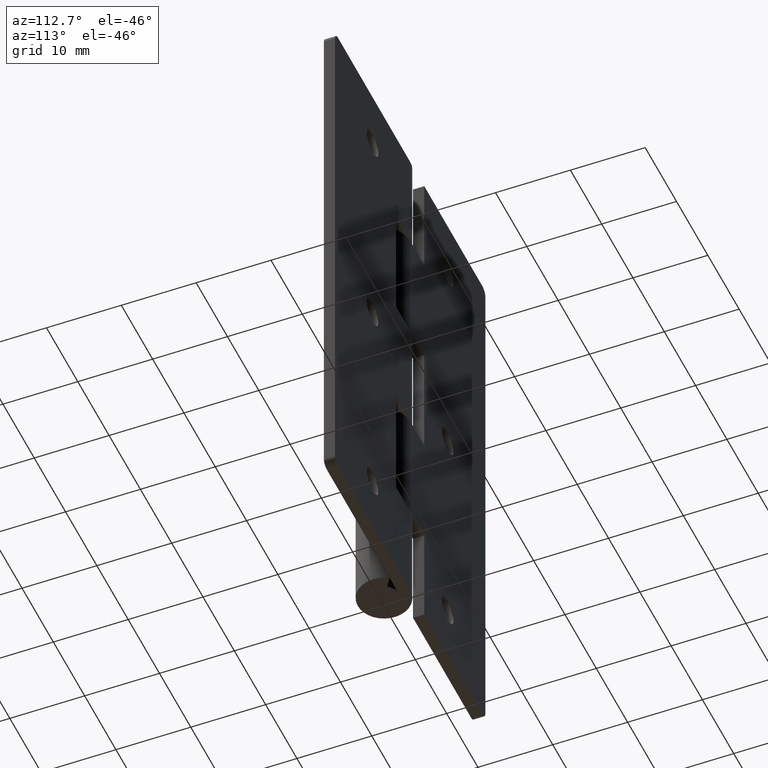
[diagram: clean part render]
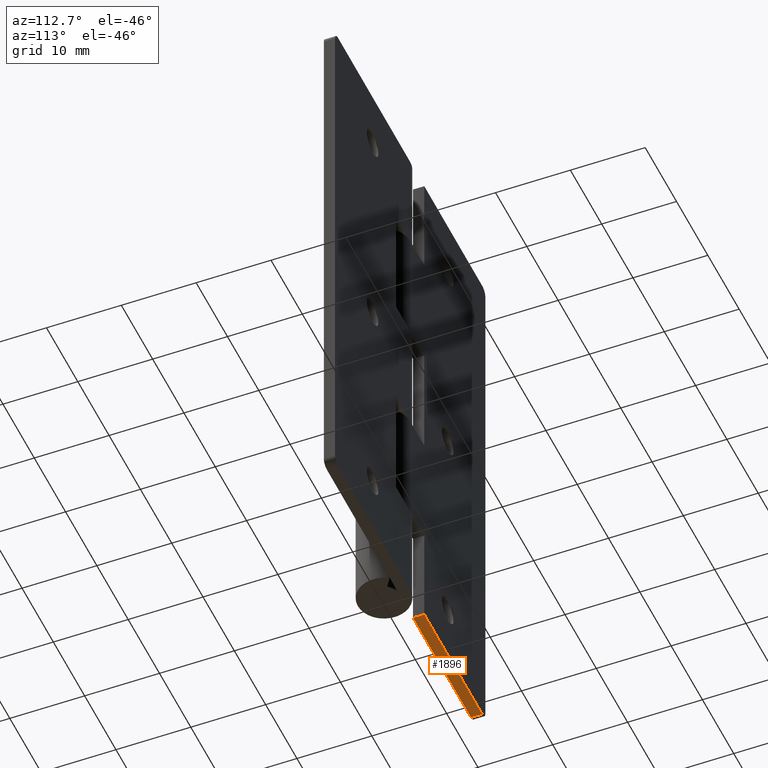
[diagram: same view with one face highlighted and labeled with its STEP entity id]
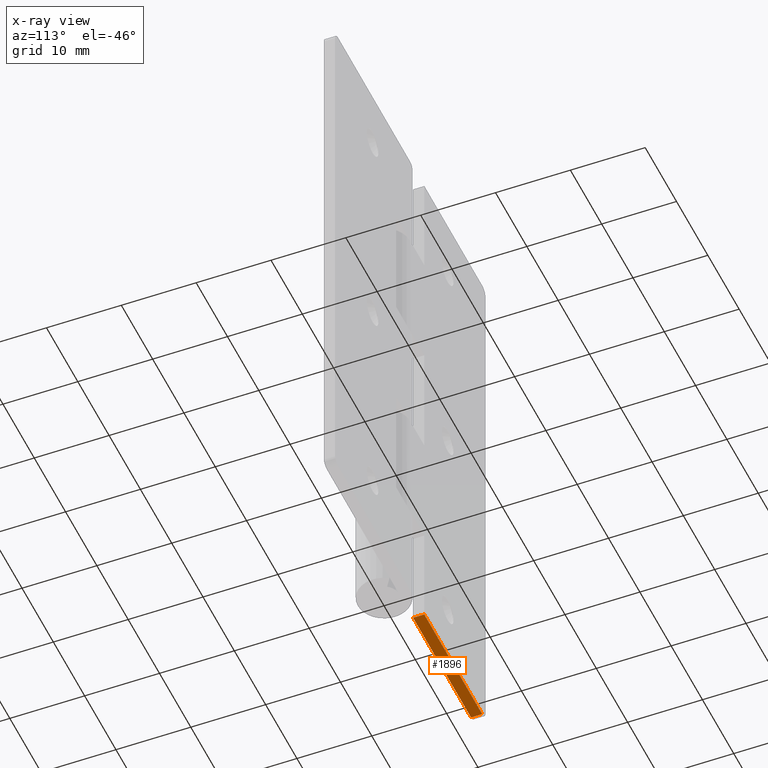
[diagram: x-ray of the same camera — body ghosted, the highlighted face saturated]
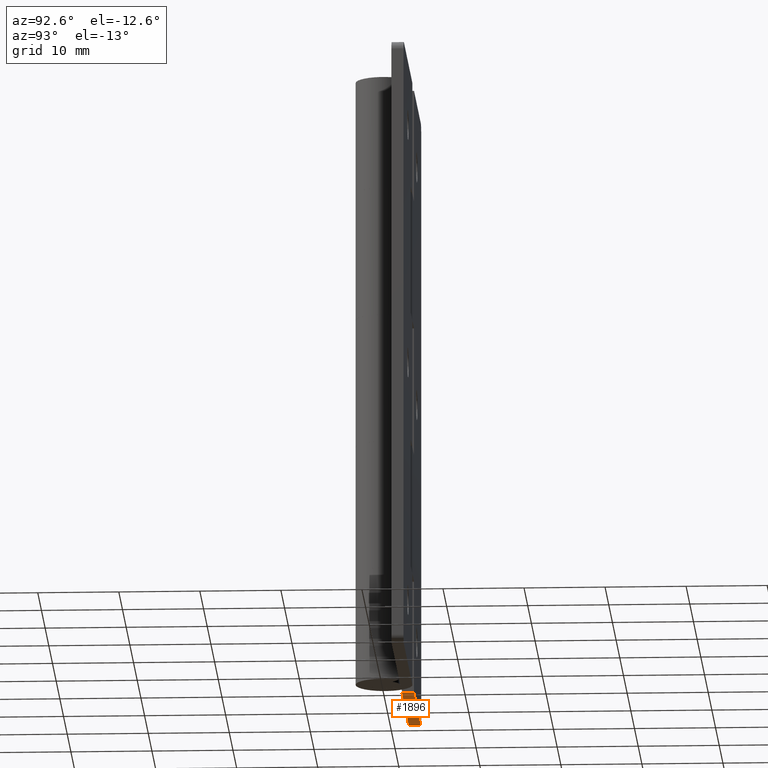
[diagram: same view with one face highlighted and labeled with its STEP entity id]
A machine part, auxiliary view. The second image highlights one B-rep face of the part: STEP entity #1896.
The next image is the same camera in x-ray: the body ghosted, the highlighted face saturated — about 0% of this face is hidden behind the body in this view.
A second angle (auxiliary view) of the same face is appended — the face is thin or edge-on in the first view.
In plain terms, the highlighted face is a freeform B-spline surface patch.
Its self-contained STEP definition (entity closure, byte-faithful):
#1692=CARTESIAN_POINT('',(-4.500000000000000,2.0,0.0));
#1693=VERTEX_POINT('',#1692);
#1699=CARTESIAN_POINT('',(-4.500000000000000,3.499999999999950,0.0));
#1700=VERTEX_POINT('',#1699);
#1701=CARTESIAN_POINT('',(-4.500000000000000,3.499999999999950,0.0));
#1702=CARTESIAN_POINT('',(-4.500000000000000,2.0,0.0));
#1703=QUASI_UNIFORM_CURVE('',1,(#1701,#1702),.UNSPECIFIED.,.F.,.U.);
#1704=EDGE_CURVE('',#1700,#1693,#1703,.T.);
#1792=CARTESIAN_POINT('',(-23.0,2.0,0.0));
#1793=VERTEX_POINT('',#1792);
#1814=CARTESIAN_POINT('',(-23.0,3.500000000000000,0.0));
#1815=VERTEX_POINT('',#1814);
#1829=CARTESIAN_POINT('',(-23.0,3.500000000000000,0.0));
#1830=CARTESIAN_POINT('',(-23.0,2.0,0.0));
#1831=QUASI_UNIFORM_CURVE('',1,(#1829,#1830),.UNSPECIFIED.,.F.,.U.);
#1832=EDGE_CURVE('',#1815,#1793,#1831,.T.);
#1877=CARTESIAN_POINT('',(-23.924074964143411,1.925075002907291,0.0));
#1878=CARTESIAN_POINT('',(-3.575924539647923,1.925075002907291,0.0));
#1879=CARTESIAN_POINT('',(-23.924074964143411,3.574925037325844,0.0));
#1880=CARTESIAN_POINT('',(-3.575924539647923,3.574925037325844,0.0));
#1881=B_SPLINE_SURFACE_WITH_KNOTS('',1,1,((#1877,#1879),(#1878,#1880)),.UNSPECIFIED.,.F.,.F.,.U.,(2,2),(2,2),(0.0,20.348150424495490),(0.041708334948495,0.958291687403247),.UNSPECIFIED.);
#1882=CARTESIAN_POINT('',(-23.0,3.500000000000000,0.0));
#1883=CARTESIAN_POINT('',(-4.500000000000000,3.499999999999950,0.0));
#1884=QUASI_UNIFORM_CURVE('',1,(#1882,#1883),.UNSPECIFIED.,.F.,.U.);
#1885=EDGE_CURVE('',#1815,#1700,#1884,.T.);
#1886=ORIENTED_EDGE('',*,*,#1885,.T.);
#1887=ORIENTED_EDGE('',*,*,#1704,.T.);
#1888=CARTESIAN_POINT('',(-4.500000000000000,2.0,0.0));
#1889=CARTESIAN_POINT('',(-23.0,2.0,0.0));
#1890=QUASI_UNIFORM_CURVE('',1,(#1888,#1889),.UNSPECIFIED.,.F.,.U.);
#1891=EDGE_CURVE('',#1693,#1793,#1890,.T.);
#1892=ORIENTED_EDGE('',*,*,#1891,.T.);
#1893=ORIENTED_EDGE('',*,*,#1832,.F.);
#1894=EDGE_LOOP('',(#1886,#1887,#1892,#1893));
#1895=FACE_OUTER_BOUND('',#1894,.T.);
#1896=ADVANCED_FACE('',(#1895),#1881,.F.);